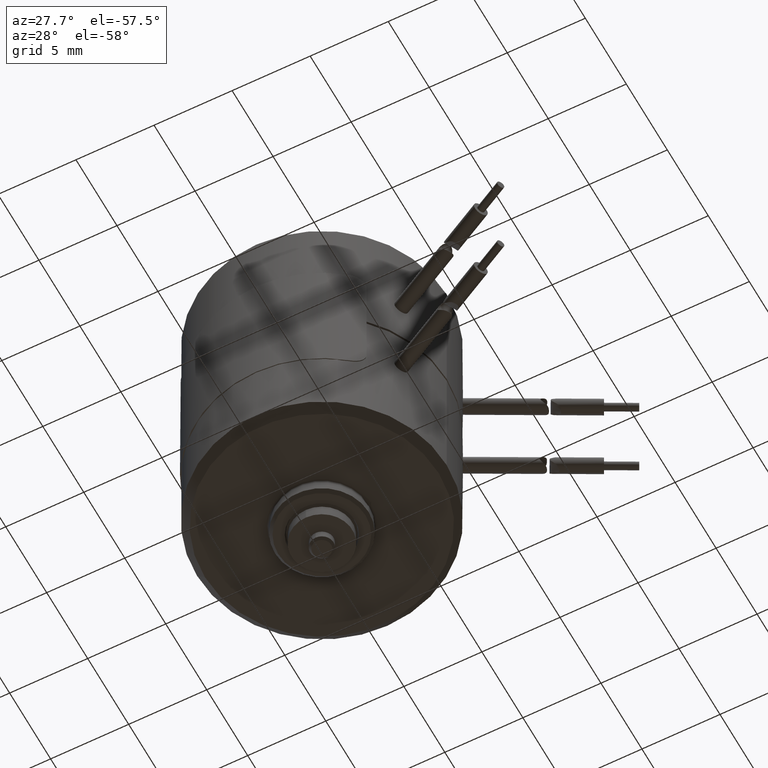
[diagram: clean part render]
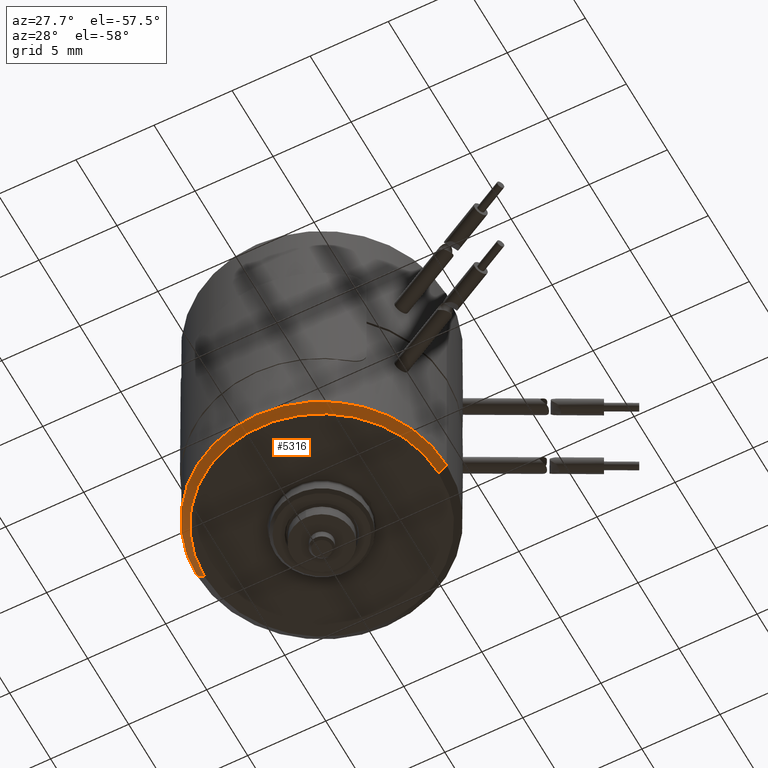
[diagram: same view with one face highlighted and labeled with its STEP entity id]
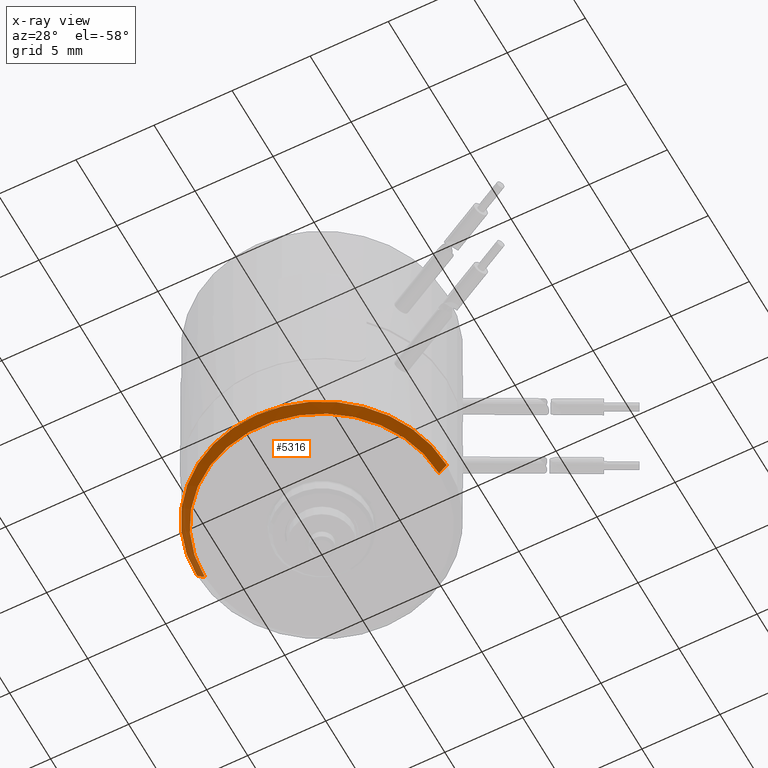
[diagram: x-ray of the same camera — body ghosted, the highlighted face saturated]
A machine part, auxiliary view. The second image highlights one B-rep face of the part: STEP entity #5316.
The next image is the same camera in x-ray: the body ghosted, the highlighted face saturated — about 0% of this face is hidden behind the body in this view.
In plain terms, the highlighted conical surface has half-angle 45 deg.
Its self-contained STEP definition (entity closure, byte-faithful):
#4958=DIRECTION('',(0.E0,-7.071067811865E-1,-7.071067811865E-1));
#4959=VECTOR('',#4958,7.071067811865E-1);
#4960=CARTESIAN_POINT('',(0.E0,-7.5E0,4.2E0));
#4961=LINE('',#4960,#4959);
#4962=CARTESIAN_POINT('',(0.E0,0.E0,3.7E0));
#4963=DIRECTION('',(0.E0,0.E0,-1.E0));
#4964=DIRECTION('',(0.E0,-1.E0,0.E0));
#4965=AXIS2_PLACEMENT_3D('',#4962,#4963,#4964);
#4967=DIRECTION('',(0.E0,7.071067811865E-1,-7.071067811865E-1));
#4968=VECTOR('',#4967,7.071067811865E-1);
#4969=CARTESIAN_POINT('',(0.E0,7.5E0,4.2E0));
#4970=LINE('',#4969,#4968);
#4976=CARTESIAN_POINT('',(0.E0,0.E0,4.2E0));
#4977=DIRECTION('',(0.E0,0.E0,-1.E0));
#4978=DIRECTION('',(0.E0,-1.E0,0.E0));
#4979=AXIS2_PLACEMENT_3D('',#4976,#4977,#4978);
#5198=CARTESIAN_POINT('',(0.E0,8.E0,3.7E0));
#5199=VERTEX_POINT('',#5198);
#5200=CARTESIAN_POINT('',(0.E0,-8.E0,3.7E0));
#5201=VERTEX_POINT('',#5200);
#5206=CARTESIAN_POINT('',(0.E0,7.5E0,4.2E0));
#5207=VERTEX_POINT('',#5206);
#5208=CARTESIAN_POINT('',(0.E0,-7.5E0,4.2E0));
#5209=VERTEX_POINT('',#5208);
#5302=CARTESIAN_POINT('',(0.E0,0.E0,3.95E0));
#5303=DIRECTION('',(0.E0,0.E0,-1.E0));
#5304=DIRECTION('',(0.E0,-1.E0,0.E0));
#5305=AXIS2_PLACEMENT_3D('',#5302,#5303,#5304);
#5306=CONICAL_SURFACE('',#5305,7.75E0,4.5E1);
#5308=ORIENTED_EDGE('',*,*,#5307,.F.);
#5310=ORIENTED_EDGE('',*,*,#5309,.F.);
#5312=ORIENTED_EDGE('',*,*,#5311,.T.);
#5313=ORIENTED_EDGE('',*,*,#5289,.T.);
#5314=EDGE_LOOP('',(#5308,#5310,#5312,#5313));
#5315=FACE_OUTER_BOUND('',#5314,.F.);
#5316=ADVANCED_FACE('',(#5315),#5306,.T.);
#4966=CIRCLE('',#4965,8.E0);
#4980=CIRCLE('',#4979,7.5E0);
#5289=EDGE_CURVE('',#5201,#5199,#4966,.T.);
#5307=EDGE_CURVE('',#5207,#5199,#4970,.T.);
#5309=EDGE_CURVE('',#5209,#5207,#4980,.T.);
#5311=EDGE_CURVE('',#5209,#5201,#4961,.T.);